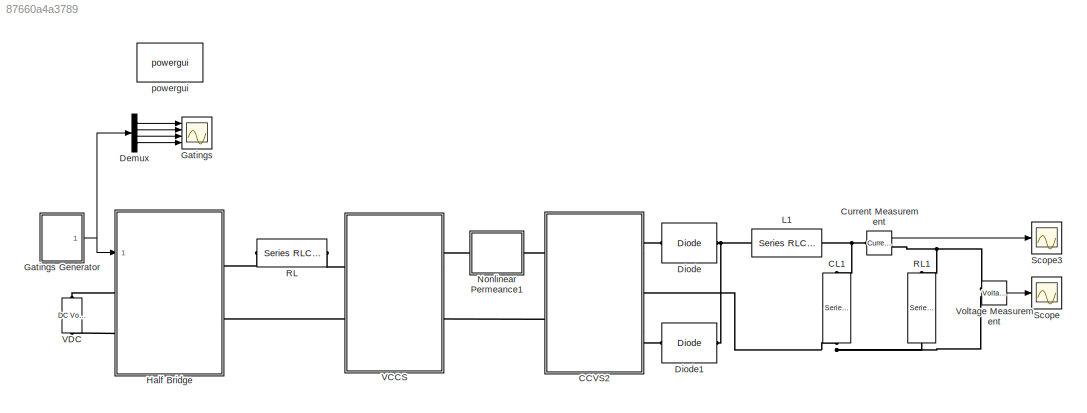
MODEL slx_87660a4a3789
KIND model
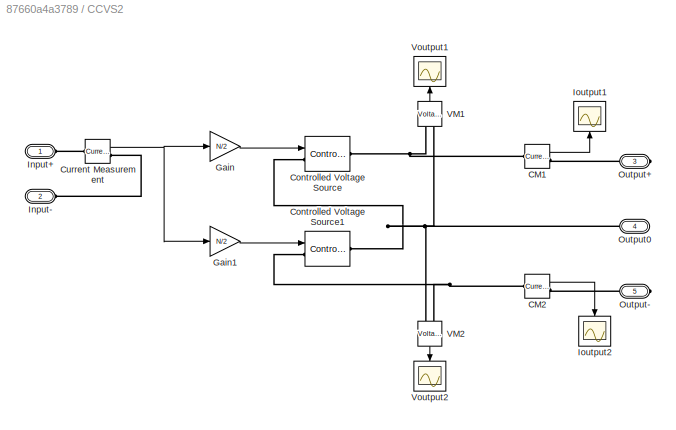
BLOCK [SubSystem] CCVS2
  FunctionWithSeparateData = off
  MaskHideContents = off
  MinAlgLoopOccurrences = off
  Opaque = off
  Ports = [0, 0, 0, 0, 0, 2, 3]
  PropExecContextOutsideSubsystem = off
  RTWSystemCode = Auto
  RequestExecContextInheritance = off
BLOCK [Reference] CCVS2/CM1  REF=powerlib/Measurements/Current Measurement
  OutputType = Complex
  PSBequivalent = 0
  PhasorSimulation = off
  Ports = [0, 1, 0, 0, 0, 1, 1]
  SourceBlock = powerlib/Measurements/Current Measurement
  SourceType = Current Measurement
BLOCK [Reference] CCVS2/CM2  REF=powerlib/Measurements/Current Measurement
  OutputType = Complex
  PSBequivalent = 0
  PhasorSimulation = off
  Ports = [0, 1, 0, 0, 0, 1, 1]
  SourceBlock = powerlib/Measurements/Current Measurement
  SourceType = Current Measurement
BLOCK [Reference] CCVS2/Controlled Voltage Source  REF=powerlib/Electrical
Sources/Controlled Voltage Source
  Amplitude = 0
  Frequency = 0
  Initialize = on
  Measurements = None
  Phase = 0
  Ports = [1, 0, 0, 0, 0, 1, 1]
  SourceBlock = powerlib/Electrical\nSources/Controlled Voltage Source
  SourceType = Controlled Voltage Source
  Source_Type = AC
BLOCK [Reference] CCVS2/Controlled Voltage Source1  REF=powerlib/Electrical
Sources/Controlled Voltage Source
  Amplitude = 0
  Frequency = 0
  Initialize = on
  Measurements = None
  Phase = 0
  Ports = [1, 0, 0, 0, 0, 1, 1]
  SourceBlock = powerlib/Electrical\nSources/Controlled Voltage Source
  SourceType = Controlled Voltage Source
  Source_Type = AC
BLOCK [Reference] CCVS2/Current Measurement  REF=powerlib/Measurements/Current Measurement
  OutputType = Complex
  PSBequivalent = 0
  PhasorSimulation = off
  Ports = [0, 1, 0, 0, 0, 1, 1]
  SourceBlock = powerlib/Measurements/Current Measurement
  SourceType = Current Measurement
BLOCK [Gain] CCVS2/Gain
  Gain = N/2
  OutDataTypeStr = Inherit: Inherit via internal rule
  ParamDataTypeStr = Inherit: Inherit via internal rule
  SaturateOnIntegerOverflow = off
BLOCK [Gain] CCVS2/Gain1
  Gain = N/2
  OutDataTypeStr = Inherit: Inherit via internal rule
  ParamDataTypeStr = Inherit: Inherit via internal rule
  SaturateOnIntegerOverflow = off
BLOCK [PMIOPort] CCVS2/Input+
  Port = 1
  Side = Left
BLOCK [PMIOPort] CCVS2/Input-
  Port = 2
  Side = Left
BLOCK [Scope] CCVS2/Ioutput1
  DataFormat = StructureWithTime
  Floating = off
  LimitDataPoints = off
  NumInputPorts = 1
  Ports = [1]
  SampleTime = 0
  SaveName = Ioup
  SaveToWorkspace = on
  ShowLegends = off
  YMax = 2e+10
  YMin = -2e+10
  ZoomMode = yonly
BLOCK [Scope] CCVS2/Ioutput2
  DataFormat = StructureWithTime
  Floating = off
  LimitDataPoints = off
  NumInputPorts = 1
  Ports = [1]
  SampleTime = 0
  SaveName = Ioun
  SaveToWorkspace = on
  ShowLegends = off
  YMax = 150
  YMin = -10
  ZoomMode = xonly
BLOCK [PMIOPort] CCVS2/Output+
  Port = 3
  Side = Right
BLOCK [PMIOPort] CCVS2/Output-
  Port = 5
  Side = Right
BLOCK [PMIOPort] CCVS2/Output0
  Port = 4
  Side = Right
BLOCK [Reference] CCVS2/VM1  REF=powerlib/Measurements/Voltage Measurement
  OutputType = Complex
  PSBequivalent = 0
  PhasorSimulation = off
  Ports = [0, 1, 0, 0, 0, 2]
  SourceBlock = powerlib/Measurements/Voltage Measurement
  SourceType = Voltage Measurement
BLOCK [Reference] CCVS2/VM2  REF=powerlib/Measurements/Voltage Measurement
  OutputType = Complex
  PSBequivalent = 0
  PhasorSimulation = off
  Ports = [0, 1, 0, 0, 0, 2]
  SourceBlock = powerlib/Measurements/Voltage Measurement
  SourceType = Voltage Measurement
BLOCK [Scope] CCVS2/Voutput1
  DataFormat = StructureWithTime
  Floating = off
  LimitDataPoints = off
  NumInputPorts = 1
  Ports = [1]
  SampleTime = 0
  SaveName = Voup
  SaveToWorkspace = on
  ShowLegends = off
  YMax = 2.25e+11
  YMin = -2.25e+11
  ZoomMode = xonly
BLOCK [Scope] CCVS2/Voutput2
  DataFormat = StructureWithTime
  Floating = off
  LimitDataPoints = off
  NumInputPorts = 1
  Ports = [1]
  SampleTime = 0
  SaveName = Voun
  SaveToWorkspace = on
  ShowLegends = off
  YMax = 20
  YMin = -20
  ZoomMode = xonly
BLOCK [Reference] CL1  REF=powerlib/Elements/Series RLC Branch
  BranchType = C
  Capacitance = 1e-9
  Inductance = 1e-3
  InitialCurrent = 0
  InitialVoltage = 0
  LConnTagsString = __new0
  Measurements = None
  Ports = [0, 0, 0, 0, 0, 1, 1]
  RConnTagsString = __new0
  Resistance = 1
  SetiL0 = off
  Setx0 = off
  SourceBlock = powerlib/Elements/Series RLC Branch
  SourceType = Series RLC Branch
BLOCK [Reference] Current Measurement  REF=powerlib/Measurements/Current Measurement
  OutputType = Complex
  PSBequivalent = 0
  PhasorSimulation = off
  Ports = [0, 1, 0, 0, 0, 1, 1]
  SourceBlock = powerlib/Measurements/Current Measurement
  SourceType = Current Measurement
BLOCK [Demux] Demux
  DisplayOption = bar
  Ports = [1, 4]
BLOCK [Reference] Diode  REF=powerlib/Power
Electronics/Diode
  Cs = 250e-9
  IC = 0
  Lon = 0
  Measurements = off
  Ports = [0, 0, 0, 0, 0, 1, 1]
  Ron = 1e-3
  Rs = 500
  SourceBlock = powerlib/Power\nElectronics/Diode
  SourceType = Diode
  UseSnubber = off
  Vf = 2
BLOCK [Reference] Diode1  REF=powerlib/Power
Electronics/Diode
  Cs = 250e-9
  IC = 0
  Lon = 0
  Measurements = off
  Ports = [0, 0, 0, 0, 0, 1, 1]
  Ron = 1e-3
  Rs = 500
  SourceBlock = powerlib/Power\nElectronics/Diode
  SourceType = Diode
  UseSnubber = off
  Vf = 2
BLOCK [Scope] Gatings
  DataFormat = StructureWithTime
  Floating = off
  LimitDataPoints = off
  NumInputPorts = 4
  Ports = [4]
  SampleTime = 0
  SaveName = ScopeData2
  ShowLegends = off
  YMax = 2~2~2~2
  YMin = -1~-1~-1~-1
  ZoomMode = xonly
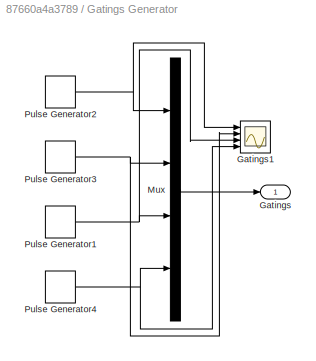
BLOCK [SubSystem] Gatings Generator
  FunctionWithSeparateData = off
  MaskHideContents = off
  MinAlgLoopOccurrences = off
  Opaque = off
  Ports = [0, 1]
  PropExecContextOutsideSubsystem = off
  RTWSystemCode = Auto
  RequestExecContextInheritance = off
BLOCK [Outport] Gatings Generator/Gatings
  IconDisplay = Port number
BLOCK [Scope] Gatings Generator/Gatings1
  DataFormat = StructureWithTime
  Floating = off
  LimitDataPoints = off
  NumInputPorts = 4
  Ports = [4]
  SampleTime = 0
  SaveName = ScopeData3
  ShowLegends = off
  YMax = 2~2~2~2
  YMin = -1~-1~-1~-1
  ZoomMode = xonly
BLOCK [Mux] Gatings Generator/Mux
  DisplayOption = bar
  Ports = [4, 1]
BLOCK [DiscretePulseGenerator] Gatings Generator/Pulse Generator1
  Period = 2/Fs
  PhaseDelay = (1/Fs)
  Ports = [0, 1]
  PulseType = Time based
  PulseWidth = 50
BLOCK [DiscretePulseGenerator] Gatings Generator/Pulse Generator2
  Period = 2/Fs
  PhaseDelay = -((100-D)/100)*(1/Fs)
  Ports = [0, 1]
  PulseType = Time based
  PulseWidth = 50
BLOCK [DiscretePulseGenerator] Gatings Generator/Pulse Generator3
  Period = 2/Fs
  PhaseDelay = (D/100)*(1/Fs)
  Ports = [0, 1]
  PulseType = Time based
  PulseWidth = 50
BLOCK [DiscretePulseGenerator] Gatings Generator/Pulse Generator4
  Period = 2/Fs
  Ports = [0, 1]
  PulseType = Time based
  PulseWidth = 50
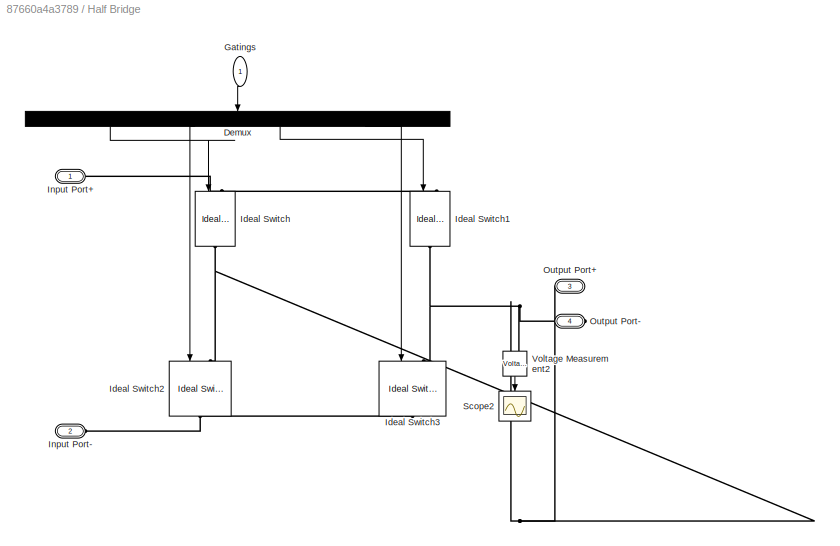
BLOCK [SubSystem] Half Bridge
  FunctionWithSeparateData = off
  MaskHideContents = off
  MinAlgLoopOccurrences = off
  Opaque = off
  Ports = [1, 0, 0, 0, 0, 2, 2]
  PropExecContextOutsideSubsystem = off
  RTWSystemCode = Auto
  RequestExecContextInheritance = off
BLOCK [Demux] Half Bridge/Demux
  DisplayOption = bar
  Ports = [1, 4]
BLOCK [Inport] Half Bridge/Gatings
  IconDisplay = Port number
BLOCK [Reference] Half Bridge/Ideal Switch  REF=powerlib/Power
Electronics/Ideal Switch
  Cs = inf
  IC = 0
  Lon = 0
  Measurements = off
  Ports = [1, 0, 0, 0, 0, 1, 1]
  Ron = 0.001
  Rs = 1e5
  SourceBlock = powerlib/Power\nElectronics/Ideal Switch
  SourceType = Ideal Switch
BLOCK [Reference] Half Bridge/Ideal Switch1  REF=powerlib/Power
Electronics/Ideal Switch
  Cs = inf
  IC = 0
  Lon = 0
  Measurements = off
  Ports = [1, 0, 0, 0, 0, 1, 1]
  Ron = 0.001
  Rs = 1e5
  SourceBlock = powerlib/Power\nElectronics/Ideal Switch
  SourceType = Ideal Switch
BLOCK [Reference] Half Bridge/Ideal Switch2  REF=powerlib/Power
Electronics/Ideal Switch
  Cs = inf
  IC = 0
  Lon = 0
  Measurements = off
  Ports = [1, 0, 0, 0, 0, 1, 1]
  Ron = 0.001
  Rs = 1e5
  SourceBlock = powerlib/Power\nElectronics/Ideal Switch
  SourceType = Ideal Switch
BLOCK [Reference] Half Bridge/Ideal Switch3  REF=powerlib/Power
Electronics/Ideal Switch
  Cs = inf
  IC = 0
  Lon = 0
  Measurements = off
  Ports = [1, 0, 0, 0, 0, 1, 1]
  Ron = 0.001
  Rs = 1e5
  SourceBlock = powerlib/Power\nElectronics/Ideal Switch
  SourceType = Ideal Switch
BLOCK [PMIOPort] Half Bridge/Input Port+
  Port = 1
  Side = Left
BLOCK [PMIOPort] Half Bridge/Input Port-
  Port = 2
  Side = Left
BLOCK [PMIOPort] Half Bridge/Output Port+
  Port = 3
  Side = Right
BLOCK [PMIOPort] Half Bridge/Output Port-
  Port = 4
  Side = Right
BLOCK [Scope] Half Bridge/Scope2
  DataFormat = StructureWithTime
  Floating = off
  LimitDataPoints = off
  NumInputPorts = 1
  Ports = [1]
  SampleTime = 0
  SaveName = Vinput
  SaveToWorkspace = on
  ShowLegends = off
  YMax = 175
  YMin = -175
  ZoomMode = xonly
BLOCK [Reference] Half Bridge/Voltage Measurement2  REF=powerlib/Measurements/Voltage Measurement
  OutputType = Complex
  PSBequivalent = 0
  PhasorSimulation = off
  Ports = [0, 1, 0, 0, 0, 2]
  SourceBlock = powerlib/Measurements/Voltage Measurement
  SourceType = Voltage Measurement
BLOCK [Reference] L1  REF=powerlib/Elements/Series RLC Branch
  BranchType = L
  Capacitance = 1e-6
  Inductance = .17e-5
  InitialCurrent = 0
  InitialVoltage = 0
  LConnTagsString = __new0
  Measurements = None
  Ports = [0, 0, 0, 0, 0, 1, 1]
  RConnTagsString = __new0
  Resistance = 1
  SetiL0 = off
  Setx0 = off
  SourceBlock = powerlib/Elements/Series RLC Branch
  SourceType = Series RLC Branch
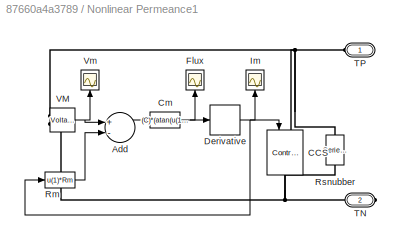
BLOCK [SubSystem] Nonlinear Permeance1
  FunctionWithSeparateData = off
  MaskHideContents = off
  MinAlgLoopOccurrences = off
  Opaque = off
  Ports = [0, 0, 0, 0, 0, 1, 1]
  PropExecContextOutsideSubsystem = off
  RTWSystemCode = Auto
  RequestExecContextInheritance = off
BLOCK [Sum] Nonlinear Permeance1/Add
  InputSameDT = off
  Inputs = +-
  OutDataTypeStr = Inherit: Inherit via internal rule
  Ports = [2, 1]
  SaturateOnIntegerOverflow = off
BLOCK [Reference] Nonlinear Permeance1/CCS  REF=powerlib/Electrical
Sources/Controlled Current Source
  Amplitude = 0
  Frequency = 0
  Initialize = on
  Measurements = None
  Phase = 0
  Ports = [1, 0, 0, 0, 0, 1, 1]
  SourceBlock = powerlib/Electrical\nSources/Controlled Current Source
  SourceType = Controlled Current Source
  Source_Type = AC
BLOCK [Fcn] Nonlinear Permeance1/Cm
  Expr = (C)*(atan(u(1)*(pi/1000)))
BLOCK [Derivative] Nonlinear Permeance1/Derivative
BLOCK [Scope] Nonlinear Permeance1/Flux
  DataFormat = StructureWithTime
  Floating = off
  LimitDataPoints = off
  NumInputPorts = 1
  Ports = [1]
  SampleTime = 0
  SaveName = PermeanceFlux
  SaveToWorkspace = on
  ShowLegends = off
  YMax = 4e-05
  YMin = -4e-05
  ZoomMode = xonly
BLOCK [Scope] Nonlinear Permeance1/Im
  DataFormat = StructureWithTime
  Floating = off
  LimitDataPoints = off
  NumInputPorts = 1
  Ports = [1]
  SampleTime = 0
  SaveName = PermeanceIm
  SaveToWorkspace = on
  ShowLegends = off
  TimeRange = 0.02
  YMax = 200
  YMin = -200
  ZoomMode = xonly
BLOCK [Fcn] Nonlinear Permeance1/Rm
  Expr = u(1)*Rm
BLOCK [Reference] Nonlinear Permeance1/Rsnubber  REF=powerlib/Elements/Series RLC Branch
  BranchType = R
  Capacitance = 1e-6
  Inductance = 1e-3
  InitialCurrent = 0
  InitialVoltage = 0
  LConnTagsString = __new0
  Measurements = None
  Ports = [0, 0, 0, 0, 0, 1, 1]
  RConnTagsString = __new0
  Resistance = R
  SetiL0 = off
  Setx0 = off
  SourceBlock = powerlib/Elements/Series RLC Branch
  SourceType = Series RLC Branch
BLOCK [PMIOPort] Nonlinear Permeance1/TN
  Port = 2
  Side = Right
BLOCK [PMIOPort] Nonlinear Permeance1/TP
  Port = 1
  Side = Left
BLOCK [Reference] Nonlinear Permeance1/VM  REF=powerlib/Measurements/Voltage Measurement
  OutputType = Complex
  PSBequivalent = 0
  PhasorSimulation = off
  Ports = [0, 1, 0, 0, 0, 2]
  SourceBlock = powerlib/Measurements/Voltage Measurement
  SourceType = Voltage Measurement
BLOCK [Scope] Nonlinear Permeance1/Vm
  DataFormat = StructureWithTime
  Floating = off
  LimitDataPoints = off
  NumInputPorts = 1
  Ports = [1]
  SampleTime = 0
  SaveName = PermeanceVm
  SaveToWorkspace = on
  ShowLegends = off
  YMax = 4000
  YMin = -4000
  ZoomMode = xonly
BLOCK [Reference] RL  REF=powerlib/Elements/Series RLC Branch
  BranchType = RL
  Capacitance = 1e-6
  Inductance = 1e-5
  InitialCurrent = 0
  InitialVoltage = 0
  LConnTagsString = __new0
  Measurements = None
  Ports = [0, 0, 0, 0, 0, 1, 1]
  RConnTagsString = __new0
  Resistance = 1
  SetiL0 = off
  Setx0 = off
  SourceBlock = powerlib/Elements/Series RLC Branch
  SourceType = Series RLC Branch
BLOCK [Reference] RL1  REF=powerlib/Elements/Series RLC Branch
  BranchType = R
  Capacitance = 1e-6
  Inductance = 1e-3
  InitialCurrent = 0
  InitialVoltage = 0
  LConnTagsString = __new0
  Measurements = None
  Ports = [0, 0, 0, 0, 0, 1, 1]
  RConnTagsString = __new0
  Resistance = 1/20
  SetiL0 = off
  Setx0 = off
  SourceBlock = powerlib/Elements/Series RLC Branch
  SourceType = Series RLC Branch
BLOCK [Scope] Scope
  DataFormat = StructureWithTime
  Floating = off
  LimitDataPoints = off
  NumInputPorts = 1
  Ports = [1]
  SampleTime = 0
  SaveName = Vou
  SaveToWorkspace = on
  ShowLegends = off
  YMax = 0.022
  YMin = -1.73472e-18
  ZoomMode = xonly
BLOCK [Scope] Scope3
  DataFormat = StructureWithTime
  Floating = off
  LimitDataPoints = off
  NumInputPorts = 1
  Ports = [1]
  SampleTime = 0
  SaveName = Iou
  SaveToWorkspace = on
  ShowLegends = off
  YMax = 105
  YMin = 45
  ZoomMode = xonly
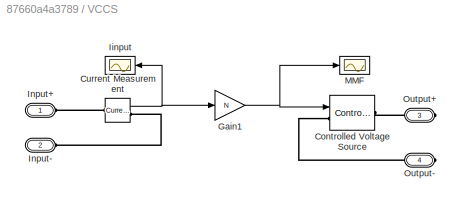
BLOCK [SubSystem] VCCS
  FunctionWithSeparateData = off
  MaskHideContents = off
  MinAlgLoopOccurrences = off
  Opaque = off
  Ports = [0, 0, 0, 0, 0, 2, 2]
  PropExecContextOutsideSubsystem = off
  RTWSystemCode = Auto
  RequestExecContextInheritance = off
BLOCK [Reference] VCCS/Controlled Voltage Source  REF=powerlib/Electrical
Sources/Controlled Voltage Source
  Amplitude = 0
  Frequency = 0
  Initialize = off
  Measurements = None
  Phase = 0
  Ports = [1, 0, 0, 0, 0, 1, 1]
  SourceBlock = powerlib/Electrical\nSources/Controlled Voltage Source
  SourceType = Controlled Voltage Source
  Source_Type = AC
BLOCK [Reference] VCCS/Current Measurement  REF=powerlib/Measurements/Current Measurement
  OutputType = Complex
  PSBequivalent = 0
  PhasorSimulation = off
  Ports = [0, 1, 0, 0, 0, 1, 1]
  SourceBlock = powerlib/Measurements/Current Measurement
  SourceType = Current Measurement
BLOCK [Gain] VCCS/Gain1
  Gain = N
  OutDataTypeStr = Inherit: Inherit via internal rule
  ParamDataTypeStr = Inherit: Inherit via internal rule
  SaturateOnIntegerOverflow = off
BLOCK [Scope] VCCS/Iinput
  DataFormat = StructureWithTime
  Floating = off
  LimitDataPoints = off
  NumInputPorts = 1
  Ports = [1]
  SampleTime = 0
  SaveName = Iprimary
  SaveToWorkspace = on
  ShowLegends = off
  YMax = 150
  YMin = 0
  ZoomMode = xonly
BLOCK [PMIOPort] VCCS/Input+
  Port = 1
  Side = Left
BLOCK [PMIOPort] VCCS/Input-
  Port = 2
  Side = Left
BLOCK [Scope] VCCS/MMF
  DataFormat = StructureWithTime
  Floating = off
  LimitDataPoints = off
  NumInputPorts = 1
  Ports = [1]
  SampleTime = 0
  SaveName = MMF
  SaveToWorkspace = on
  ShowLegends = off
  YMax = 15000
  YMin = 0
  ZoomMode = xonly
BLOCK [PMIOPort] VCCS/Output+
  Port = 3
  Side = Right
BLOCK [PMIOPort] VCCS/Output-
  Port = 4
  Side = Right
BLOCK [Reference] VDC  REF=powerlib/Electrical
Sources/DC Voltage Source
  Amplitude = 160
  Measurements = None
  Ports = [0, 0, 0, 0, 0, 1, 1]
  SourceBlock = powerlib/Electrical\nSources/DC Voltage Source
  SourceType = DC Voltage Source
BLOCK [Reference] Voltage Measurement  REF=powerlib/Measurements/Voltage Measurement
  OutputType = Complex
  PSBequivalent = 0
  PhasorSimulation = off
  Ports = [0, 1, 0, 0, 0, 2]
  SourceBlock = powerlib/Measurements/Voltage Measurement
  SourceType = Voltage Measurement
BLOCK [Reference] powergui  REF=powerlib/powergui
  DisableRonSwitches = off
  DisableSnubberDevices = off
  DisableVfSwitches = off
  DisplayEquations = off
  DisplayStyle = 1
  EnableUseOfTLC = off
  ErrMax = 1e-4
  Frange = [0:2:500]
  FreqAxis = off
  FunctionMessages = off
  HookPort = off
  Interpol = off
  Iterations = 50
  MaxFrequency = 1000
  Pbase = 100e6
  Ports = []
  Priority = 1
  ResistiveCurrentMeasurement = off
  RestoreLinks = warning
  RmsSteady = 1
  SPID = on
  SampleTime = 1e-7
  ShowGrid = off
  SolverType = Backward Euler
  SourceBlock = powerlib/powergui
  SourceType = PSB option menu block
  StartTime = 0.0
  SwTol = 0
  Ts = 0
  UnitsV = kV
  UnitsW = MW
  UserDataPersistent = on
  Xlog = on
  Ylog = off
  ZoomFFT = off
  cycles = 1
  display = off
  echomessages = off
  frequency = 60
  frequencyindice = 0
  frequencyindicesteady = 1
  fundamental = 60
  methode = off
  save = off
  variable = ZData
  x0status = blocks
LINE CCVS2/CM1:1 -> CCVS2/Ioutput1:1
LINE CCVS2/CM2:1 -> CCVS2/Ioutput2:1
NET CCVS2/Current Measurement:1 -> CCVS2/Gain1:1, CCVS2/Gain:1
LINE CCVS2/Gain1:1 -> CCVS2/Controlled Voltage Source1:1
LINE CCVS2/Gain:1 -> CCVS2/Controlled Voltage Source:1
LINE CCVS2/VM1:1 -> CCVS2/Voutput1:1
LINE CCVS2/VM2:1 -> CCVS2/Voutput2:1
LINE Current Measurement:1 -> Scope3:1
LINE Demux:1 -> Gatings:1
LINE Demux:2 -> Gatings:2
LINE Demux:3 -> Gatings:3
LINE Demux:4 -> Gatings:4
LINE Gatings Generator/Mux:1 -> Gatings Generator/Gatings:1
NET Gatings Generator/Pulse Generator1:1 -> Gatings Generator/Gatings1:3, Gatings Generator/Mux:3
NET Gatings Generator/Pulse Generator2:1 -> Gatings Generator/Gatings1:1, Gatings Generator/Mux:1
NET Gatings Generator/Pulse Generator3:1 -> Gatings Generator/Gatings1:2, Gatings Generator/Mux:2
NET Gatings Generator/Pulse Generator4:1 -> Gatings Generator/Gatings1:4, Gatings Generator/Mux:4
NET Gatings Generator:1 -> Demux:1, Half Bridge:1
LINE Half Bridge/Demux:1 -> Half Bridge/Ideal Switch:1
LINE Half Bridge/Demux:2 -> Half Bridge/Ideal Switch2:1
LINE Half Bridge/Demux:3 -> Half Bridge/Ideal Switch1:1
LINE Half Bridge/Demux:4 -> Half Bridge/Ideal Switch3:1
LINE Half Bridge/Gatings:1 -> Half Bridge/Demux:1
LINE Half Bridge/Voltage Measurement2:1 -> Half Bridge/Scope2:1
LINE Nonlinear Permeance1/Add:1 -> Nonlinear Permeance1/Cm:1
NET Nonlinear Permeance1/Cm:1 -> Nonlinear Permeance1/Derivative:1, Nonlinear Permeance1/Flux:1
NET Nonlinear Permeance1/Derivative:1 -> Nonlinear Permeance1/CCS:1, Nonlinear Permeance1/Im:1, Nonlinear Permeance1/Rm:1
LINE Nonlinear Permeance1/Rm:1 -> Nonlinear Permeance1/Add:2
NET Nonlinear Permeance1/VM:1 -> Nonlinear Permeance1/Add:1, Nonlinear Permeance1/Vm:1
NET VCCS/Current Measurement:1 -> VCCS/Gain1:1, VCCS/Iinput:1
NET VCCS/Gain1:1 -> VCCS/Controlled Voltage Source:1, VCCS/MMF:1
LINE Voltage Measurement:1 -> Scope:1
PNET net1: CCVS2/CM1:LConn1 -- CCVS2/Controlled Voltage Source:RConn1 -- CCVS2/VM1:LConn1
PLINE CCVS2/CM1:RConn1 -- CCVS2/Output+:RConn1
PNET net2: CCVS2/CM2:LConn1 -- CCVS2/Controlled Voltage Source1:LConn1 -- CCVS2/VM2:LConn2
PLINE CCVS2/CM2:RConn1 -- CCVS2/Output-:RConn1
PNET net3: CCVS2/Controlled Voltage Source1:RConn1 -- CCVS2/Controlled Voltage Source:LConn1 -- CCVS2/Output0:RConn1 -- CCVS2/VM1:LConn2 -- CCVS2/VM2:LConn1
PLINE CCVS2/Current Measurement:LConn1 -- CCVS2/Input+:RConn1
PLINE CCVS2/Current Measurement:RConn1 -- CCVS2/Input-:RConn1
PLINE CCVS2:LConn1 -- Nonlinear Permeance1:RConn1
PLINE CCVS2:LConn2 -- VCCS:RConn2
PLINE CCVS2:RConn1 -- Diode:LConn1
PNET net4: CCVS2:RConn2 -- CL1:LConn1 -- RL1:LConn1 -- Voltage Measurement:LConn2
PLINE CCVS2:RConn3 -- Diode1:LConn1
PNET net5: CL1:RConn1 -- Current Measurement:LConn1 -- L1:LConn1
PNET net6: Current Measurement:RConn1 -- RL1:RConn1 -- Voltage Measurement:LConn1
PNET net7: Diode1:RConn1 -- Diode:RConn1 -- L1:RConn1
PNET net8: Half Bridge/Ideal Switch1:LConn1 -- Half Bridge/Ideal Switch:LConn1 -- Half Bridge/Input Port+:RConn1
PNET net9: Half Bridge/Ideal Switch1:RConn1 -- Half Bridge/Ideal Switch3:LConn1 -- Half Bridge/Output Port-:RConn1 -- Half Bridge/Voltage Measurement2:LConn2
PNET net10: Half Bridge/Ideal Switch2:LConn1 -- Half Bridge/Ideal Switch:RConn1 -- Half Bridge/Output Port+:RConn1 -- Half Bridge/Voltage Measurement2:LConn1
PNET net11: Half Bridge/Ideal Switch2:RConn1 -- Half Bridge/Ideal Switch3:RConn1 -- Half Bridge/Input Port-:RConn1
PLINE Half Bridge:LConn1 -- VDC:RConn1
PLINE Half Bridge:LConn2 -- VDC:LConn1
PLINE Half Bridge:RConn1 -- RL:LConn1
PLINE Half Bridge:RConn2 -- VCCS:LConn2
PNET net12: Nonlinear Permeance1/CCS:LConn1 -- Nonlinear Permeance1/Rsnubber:LConn1 -- Nonlinear Permeance1/TP:RConn1 -- Nonlinear Permeance1/VM:LConn1
PNET net13: Nonlinear Permeance1/CCS:RConn1 -- Nonlinear Permeance1/Rsnubber:RConn1 -- Nonlinear Permeance1/TN:RConn1 -- Nonlinear Permeance1/VM:LConn2
PLINE Nonlinear Permeance1:LConn1 -- VCCS:RConn1
PLINE RL:RConn1 -- VCCS:LConn1
PLINE VCCS/Controlled Voltage Source:LConn1 -- VCCS/Output-:RConn1
PLINE VCCS/Controlled Voltage Source:RConn1 -- VCCS/Output+:RConn1
PLINE VCCS/Current Measurement:LConn1 -- VCCS/Input+:RConn1
PLINE VCCS/Current Measurement:RConn1 -- VCCS/Input-:RConn1
note: NET lines group one-source signal fan-out (src -> all destinations, sorted); 1:1 wires keep LINE; PNET lines group multi-terminal physical nets as a canonical sorted terminal list (undirected conserving connections); 2-terminal nets keep the pairwise PLINE form
